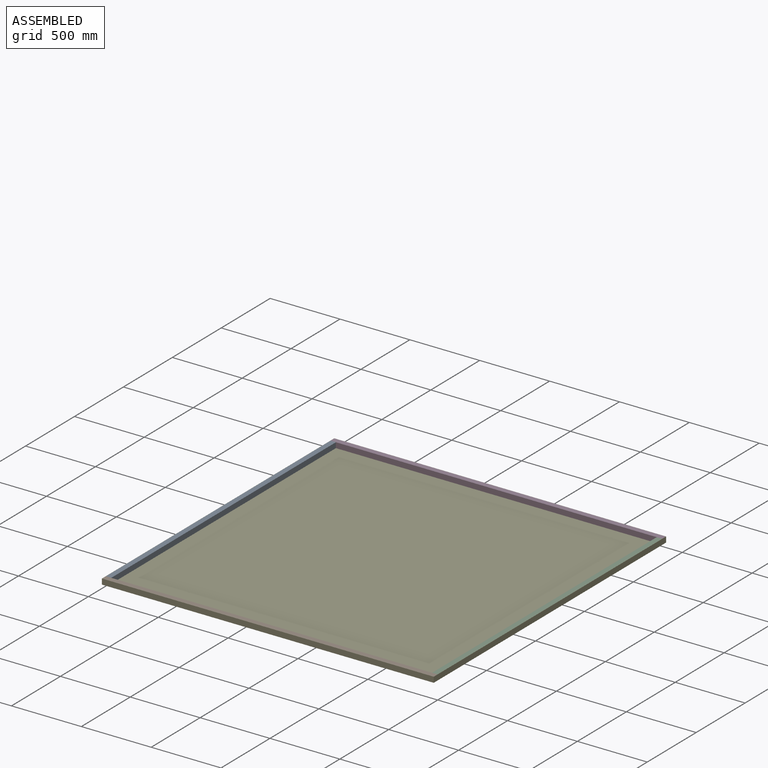
[diagram: assembled view]
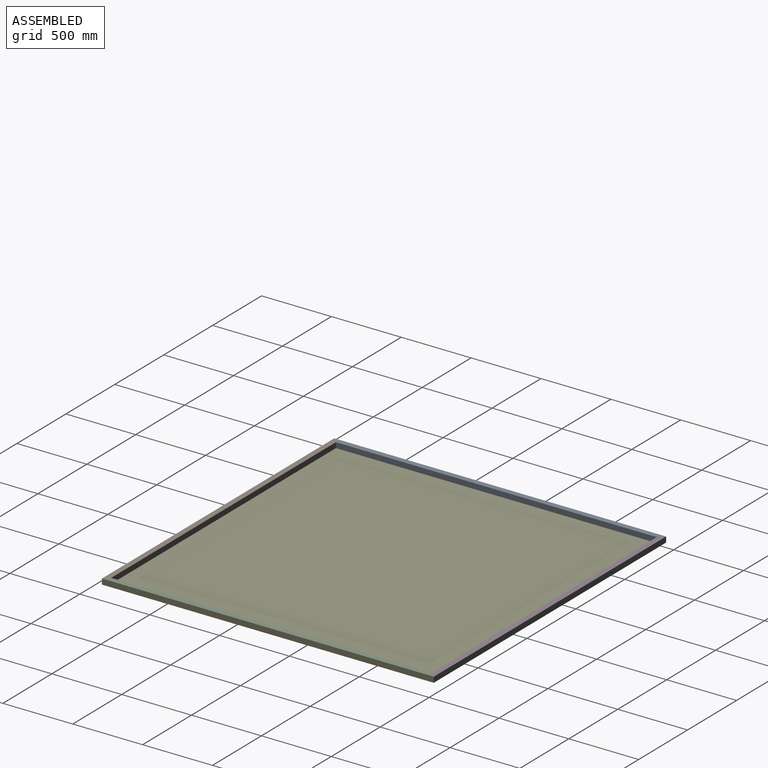
[diagram: assembled view, second angle]
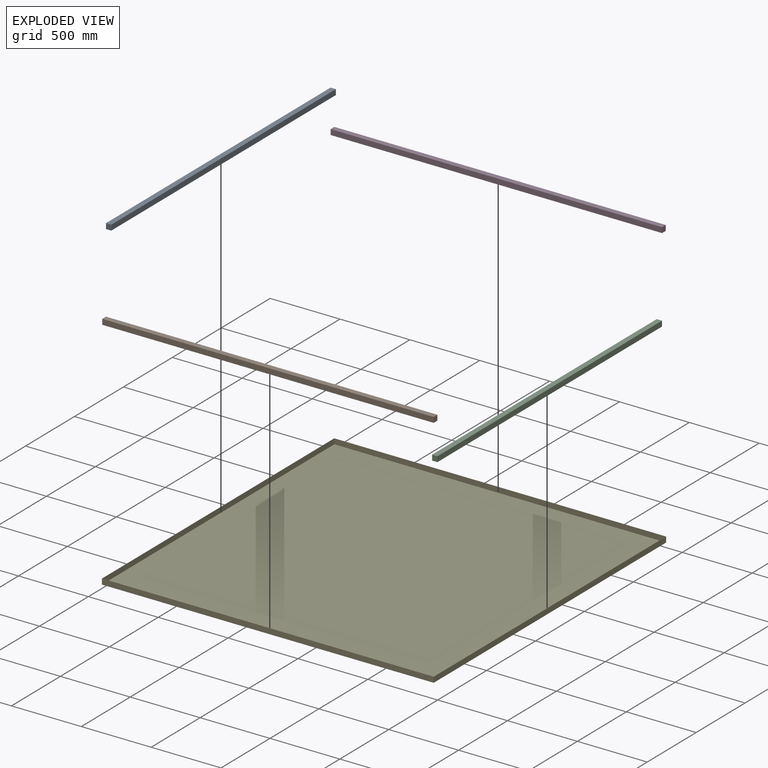
[diagram: exploded view]
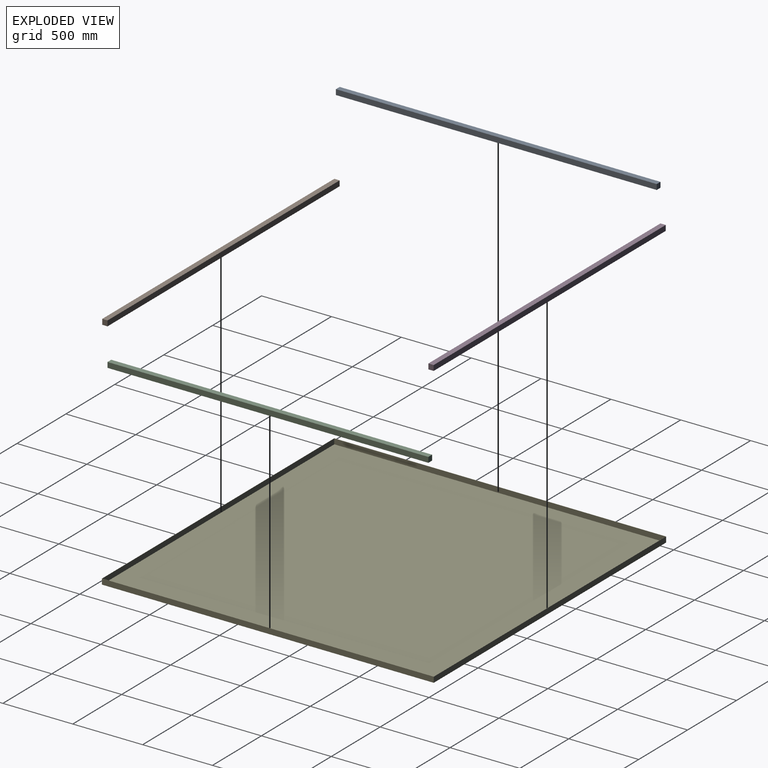
[diagram: exploded view, second angle]
ASSEMBLY  parts=5 mates=4
PART A: 6 faces, bbox 38.1x2296.2x38.1 mm
  f0: plane 38.1x38.1mm, normal (0,-1,0), area 1451.6mm2, adj f1,f2,f3,f4
  f1: plane 2296.16x38.1mm, normal (0,0,-1), area 87483.7mm2, adj f0,f2,f4,f5
  f2: plane 2296.16x38.1mm, normal (1,0,0), area 87483.7mm2, adj f0,f1,f3,f5
  f3: plane 2296.16x38.1mm, normal (0,0,1), area 87483.7mm2, adj f0,f2,f4,f5
  f4: plane 2296.16x38.1mm, normal (-1,0,0), area 87483.7mm2, adj f0,f1,f3,f5
  f5: plane 38.1x38.1mm, normal (0,1,0), area 1451.6mm2, adj f1,f2,f3,f4
PART B: 6 faces, bbox 2372.4x38.1x38.1 mm
  f0: plane 38.1x38.1mm, normal (1,0,0), area 1451.6mm2, adj f1,f2,f3,f4
  f1: plane 2372.36x38.1mm, normal (0,-1,0), area 90386.9mm2, adj f0,f2,f4,f5
  f2: plane 2372.36x38.1mm, normal (0,0,-1), area 90386.9mm2, adj f0,f1,f3,f5
  f3: plane 2372.36x38.1mm, normal (0,1,0), area 90386.9mm2, adj f0,f2,f4,f5
  f4: plane 2372.36x38.1mm, normal (0,0,1), area 90386.9mm2, adj f0,f1,f3,f5
  f5: plane 38.1x38.1mm, normal (-1,0,0), area 1451.6mm2, adj f1,f2,f3,f4
PART C: same geometry as A
PART D: same geometry as B
PART E: 11 faces, bbox 2374.9x2374.9x39.4 mm
  f0: plane 2374.9x39.37mm, normal (-1,0,0), area 93499.8mm2, adj f1,f3,f4,f5
  f1: plane 2374.9x39.37mm, normal (0,-1,0), area 93499.8mm2, adj f0,f2,f4,f5
  f2: plane 2374.9x39.37mm, normal (1,0,0), area 93499.8mm2, adj f1,f3,f4,f5
  f3: plane 2374.9x39.37mm, normal (0,1,0), area 93499.8mm2, adj f0,f2,f4,f5
  f4: plane 2374.9x2374.9mm, normal (0,0,1), area 12058mm2, adj f0,f1,f2,f3,f6,f7,f8,f9
  f5: plane 2374.9x2374.9mm, normal (0,0,-1), area 5640150mm2, adj f0,f1,f2,f3
  f6: plane 2372.36x38.1mm, normal (1,0,0), area 90386.9mm2, adj f4,f7,f9,f10
  f7: plane 2372.36x38.1mm, normal (0,1,0), area 90386.9mm2, adj f4,f6,f8,f10
  f8: plane 2372.36x38.1mm, normal (-1,0,0), area 90386.9mm2, adj f4,f7,f9,f10
  f9: plane 2372.36x38.1mm, normal (0,-1,0), area 90386.9mm2, adj f4,f6,f8,f10
  f10: plane 2372.36x2372.36mm, normal (0,0,1), area 5628092mm2, adj f6,f7,f8,f9
PLACE A at identity
PLACE B t=(0,-2334.26,0)mm
PLACE C t=(2334.26,0,0)mm
PLACE D at identity
PLACE E at identity
MATE fastened D.f4 <-> E.f4  axis (0,0,1) through (1219.2,-33.02,39.37)mm
MATE fastened B.f4 <-> E.f4  axis (0,0,1) through (1219.2,-2405.38,39.37)mm
MATE fastened A.f3 <-> E.f4  axis (0,0,1) through (33.02,-1219.2,39.37)mm
MATE fastened C.f3 <-> E.f4  axis (0,0,1) through (2405.38,-1219.2,39.37)mm
